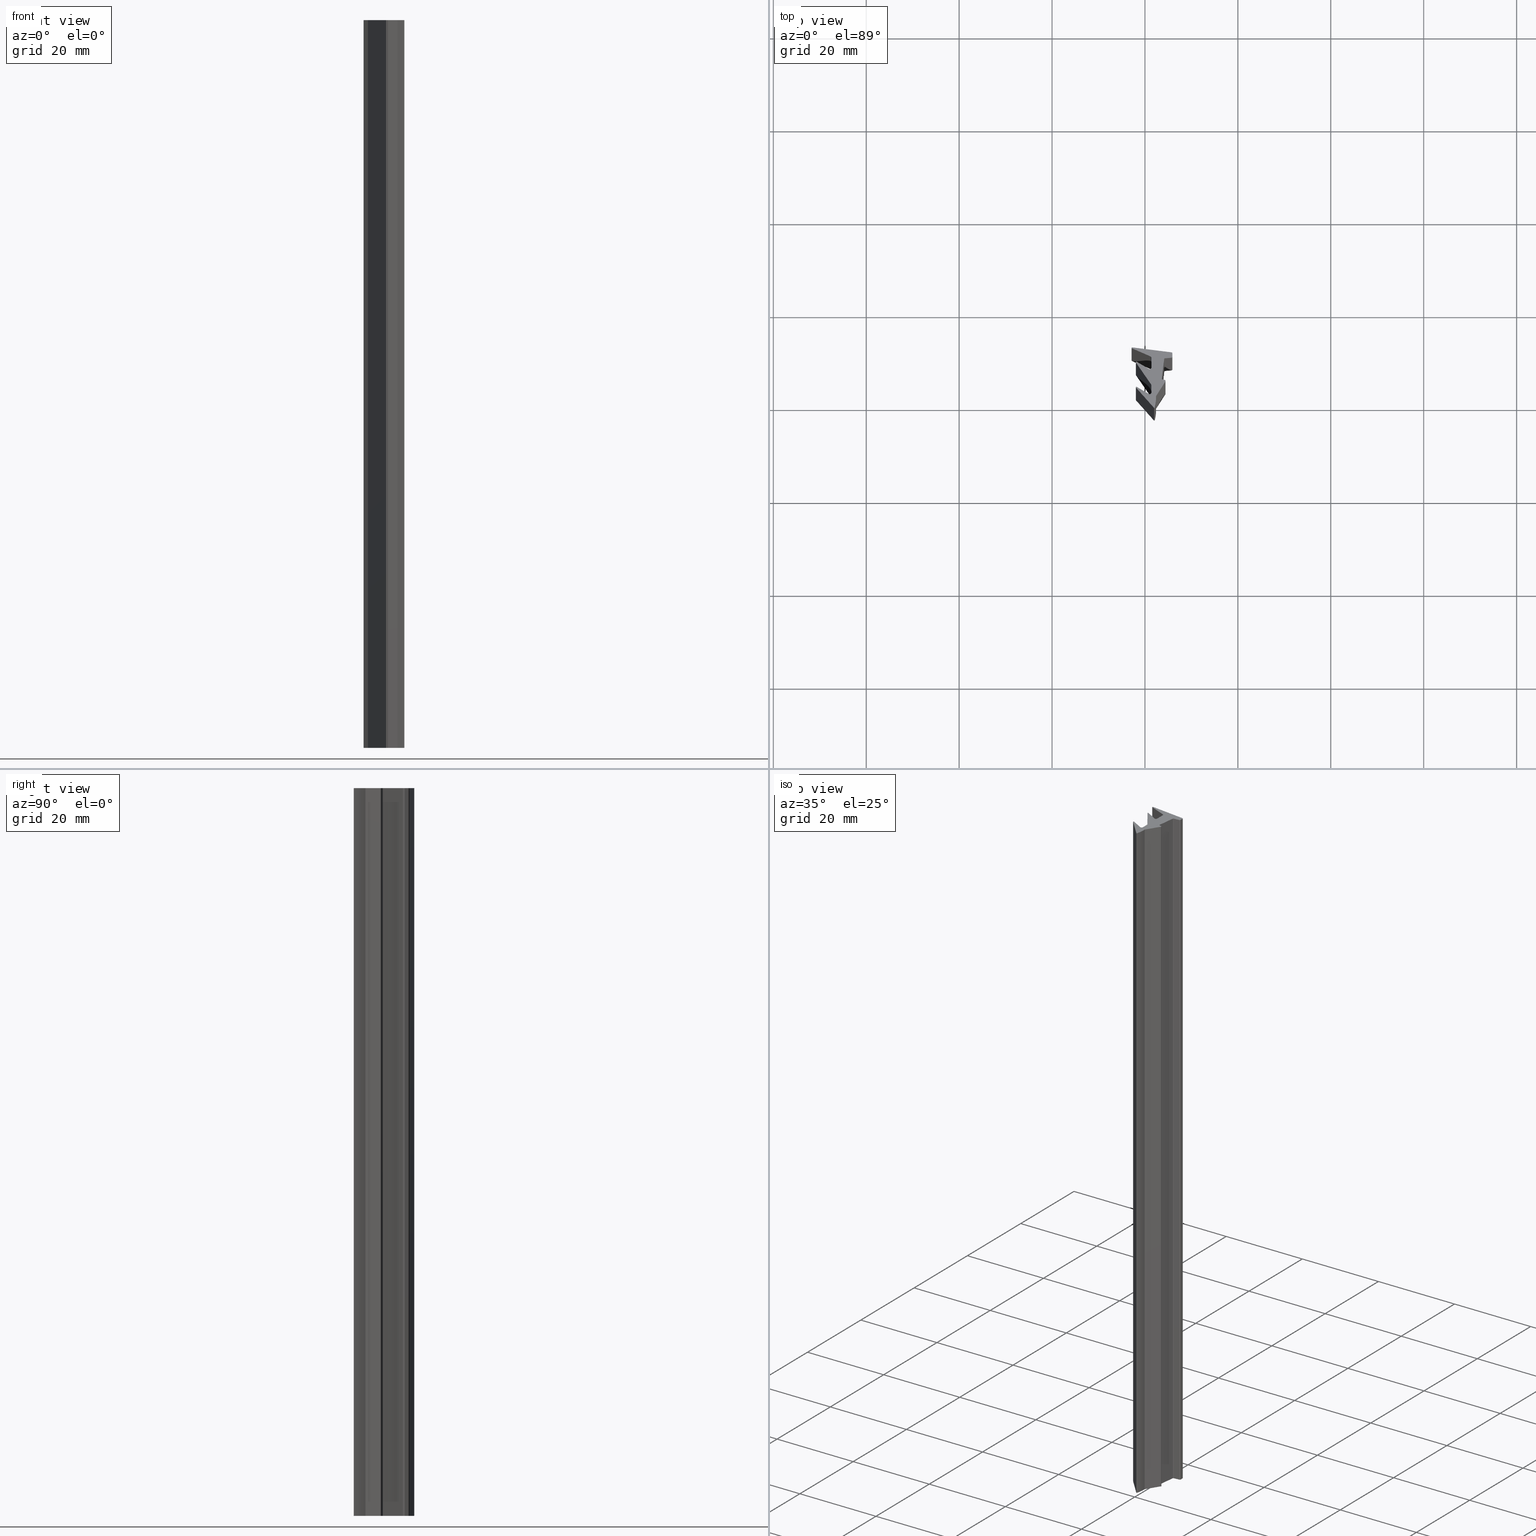
[diagram: canonical four-view strip — front | top / right | iso, engineering-drawing reading convention]
A machine part, canonical four-view strip (front | top / right | iso — engineering-drawing reading convention). The complete STEP part file that produces these views, byte-faithful:
ISO-10303-21;
HEADER;
/****************************************************************
 * Generated by software with PDE/Lib inside                    *
 * PDElib Version v4.4, created Mon 02/23/2004                  *
 * International Technegroup Inc. (www.iti-oh.com)              *
 ****************************************************************/
FILE_DESCRIPTION(('STEP AP203'),'2;1');
FILE_NAME('21.070.00G.stp','2011-09-08T18:04:04',(''),(''),'2009.3.110','THINKDESIGN','');
FILE_SCHEMA(('CONFIG_CONTROL_DESIGN'));
ENDSEC;
DATA;
#2=CARTESIAN_POINT('',(3.782572141367382,4.093453897153268,156.662099556738530));
#3=DIRECTION('',(0.0,0.0,-1.0));
#4=DIRECTION('',(0.822371216362605,0.568951300638543,0.0));
#5=AXIS2_PLACEMENT_3D('',#2,#3,#4);
#6=CYLINDRICAL_SURFACE('',#5,0.156662099546739);
#7=CARTESIAN_POINT('',(3.745838185829598,3.941159347201392,0.0));
#8=VERTEX_POINT('',#7);
#9=CARTESIAN_POINT('',(3.627106216672928,4.112776414931432,0.0));
#10=VERTEX_POINT('',#9);
#11=CARTESIAN_POINT('',(3.782572141367383,4.093453897154178,0.0));
#12=DIRECTION('',(0.0,0.0,-1.000000000000000));
#13=DIRECTION('',(-0.992364618783390,0.123338815410629,0.0));
#14=AXIS2_PLACEMENT_3D('',#11,#12,#13);
#15=CIRCLE('',#14,0.156662099546739);
#16=EDGE_CURVE('',#8,#10,#15,.T.);
#17=ORIENTED_EDGE('',*,*,#16,.T.);
#18=CARTESIAN_POINT('',(3.627106216672928,4.112776414931432,156.662099546738520));
#19=VERTEX_POINT('',#18);
#20=CARTESIAN_POINT('',(3.627106216672928,4.112776414931432,0.0));
#21=DIRECTION('',(0.0,0.0,1.0));
#22=VECTOR('',#21,156.662099546738520);
#23=LINE('',#20,#22);
#24=EDGE_CURVE('',#10,#19,#23,.T.);
#25=ORIENTED_EDGE('',*,*,#24,.T.);
#26=CARTESIAN_POINT('',(3.745838185829598,3.941159347201392,156.662099546738520));
#27=VERTEX_POINT('',#26);
#28=CARTESIAN_POINT('',(3.782572141367383,4.093453897154178,156.662099546738570));
#29=DIRECTION('',(0.0,0.0,-1.000000000000000));
#30=DIRECTION('',(-0.992364618783390,0.123338815410629,0.0));
#31=AXIS2_PLACEMENT_3D('',#28,#29,#30);
#32=CIRCLE('',#31,0.156662099546739);
#33=EDGE_CURVE('',#27,#19,#32,.T.);
#34=ORIENTED_EDGE('',*,*,#33,.F.);
#35=CARTESIAN_POINT('',(3.745838185829598,3.941159347201392,0.0));
#36=DIRECTION('',(0.0,0.0,1.0));
#37=VECTOR('',#36,156.662099546738520);
#38=LINE('',#35,#37);
#39=EDGE_CURVE('',#8,#27,#38,.T.);
#40=ORIENTED_EDGE('',*,*,#39,.F.);
#41=EDGE_LOOP('',(#17,#25,#34,#40));
#42=FACE_OUTER_BOUND('',#41,.T.);
#43=ADVANCED_FACE('',(#42),#6,.F.);
#44=CARTESIAN_POINT('',(3.600855590343144,3.901568023608888,-7.833104977336927));
#45=DIRECTION('',(0.992364618783426,-0.123338815410339,0.0));
#46=DIRECTION('',(0.123338815410339,0.992364618783426,0.0));
#47=AXIS2_PLACEMENT_3D('',#44,#45,#46);
#48=PLANE('',#47);
#49=CARTESIAN_POINT('',(4.152118743265419,8.336944241380479,0.0));
#50=VERTEX_POINT('',#49);
#51=CARTESIAN_POINT('',(3.627106216672928,4.112776414931432,0.0));
#52=DIRECTION('',(0.123338815410290,0.992364618783432,0.0));
#53=VECTOR('',#52,4.256669117876829);
#54=LINE('',#51,#53);
#55=EDGE_CURVE('',#10,#50,#54,.T.);
#56=ORIENTED_EDGE('',*,*,#55,.T.);
#57=CARTESIAN_POINT('',(4.152118743265419,8.336944241380479,156.662099546738520));
#58=VERTEX_POINT('',#57);
#59=CARTESIAN_POINT('',(4.152118743265419,8.336944241380479,0.0));
#60=DIRECTION('',(0.0,0.0,1.0));
#61=VECTOR('',#60,156.662099546738520);
#62=LINE('',#59,#61);
#63=EDGE_CURVE('',#50,#58,#62,.T.);
#64=ORIENTED_EDGE('',*,*,#63,.T.);
#65=CARTESIAN_POINT('',(3.627106216672928,4.112776414931432,156.662099546738520));
#66=DIRECTION('',(0.123338815410290,0.992364618783432,0.0));
#67=VECTOR('',#66,4.256669117876829);
#68=LINE('',#65,#67);
#69=EDGE_CURVE('',#19,#58,#68,.T.);
#70=ORIENTED_EDGE('',*,*,#69,.F.);
#71=ORIENTED_EDGE('',*,*,#24,.F.);
#72=EDGE_LOOP('',(#56,#64,#70,#71));
#73=FACE_OUTER_BOUND('',#72,.T.);
#74=ADVANCED_FACE('',(#73),#48,.T.);
#75=CARTESIAN_POINT('',(4.307584667960327,8.317621723603224,156.662099556738530));
#76=DIRECTION('',(0.0,0.0,-1.0));
#77=DIRECTION('',(0.693305467504988,-0.720643829313546,0.0));
#78=AXIS2_PLACEMENT_3D('',#75,#76,#77);
#79=CYLINDRICAL_SURFACE('',#78,0.156662099546739);
#80=CARTESIAN_POINT('',(4.294286135813309,8.473718368272785,0.0));
#81=VERTEX_POINT('',#80);
#82=CARTESIAN_POINT('',(4.307584667960328,8.317621723604136,0.0));
#83=DIRECTION('',(0.0,0.0,-1.000000000000000));
#84=DIRECTION('',(-0.992364618783390,0.123338815410629,0.0));
#85=AXIS2_PLACEMENT_3D('',#82,#83,#84);
#86=CIRCLE('',#85,0.156662099546739);
#87=EDGE_CURVE('',#50,#81,#86,.T.);
#88=ORIENTED_EDGE('',*,*,#87,.T.);
#89=CARTESIAN_POINT('',(4.294286135813309,8.473718368272785,156.662099546738520));
#90=VERTEX_POINT('',#89);
#91=CARTESIAN_POINT('',(4.294286135813309,8.473718368272785,0.0));
#92=DIRECTION('',(0.0,0.0,1.0));
#93=VECTOR('',#92,156.662099546738520);
#94=LINE('',#91,#93);
#95=EDGE_CURVE('',#81,#90,#94,.T.);
#96=ORIENTED_EDGE('',*,*,#95,.T.);
#97=CARTESIAN_POINT('',(4.307584667960328,8.317621723604136,156.662099546738570));
#98=DIRECTION('',(0.0,0.0,-1.000000000000000));
#99=DIRECTION('',(-0.992364618783390,0.123338815410629,0.0));
#100=AXIS2_PLACEMENT_3D('',#97,#98,#99);
#101=CIRCLE('',#100,0.156662099546739);
#102=EDGE_CURVE('',#58,#90,#101,.T.);
#103=ORIENTED_EDGE('',*,*,#102,.F.);
#104=ORIENTED_EDGE('',*,*,#63,.F.);
#105=EDGE_LOOP('',(#88,#96,#103,#104));
#106=FACE_OUTER_BOUND('',#105,.T.);
#107=ADVANCED_FACE('',(#106),#79,.F.);
#108=CARTESIAN_POINT('',(4.223379425339317,8.467677526263287,-7.833104977336927));
#109=DIRECTION('',(0.084886722349647,-0.996390608330254,0.0));
#110=DIRECTION('',(0.996390608330254,0.084886722349647,0.0));
#111=AXIS2_PLACEMENT_3D('',#108,#109,#110);
#112=PLANE('',#111);
#113=CARTESIAN_POINT('',(5.712420345300416,8.594535208463640,0.0));
#114=VERTEX_POINT('',#113);
#115=CARTESIAN_POINT('',(4.294286135813309,8.473718368272785,0.0));
#116=DIRECTION('',(0.996390608330204,0.084886722350242,0.0));
#117=VECTOR('',#116,1.423271353253400);
#118=LINE('',#115,#117);
#119=EDGE_CURVE('',#81,#114,#118,.T.);
#120=ORIENTED_EDGE('',*,*,#119,.T.);
#121=CARTESIAN_POINT('',(5.712420345300416,8.594535208463640,156.662099546738520));
#122=VERTEX_POINT('',#121);
#123=CARTESIAN_POINT('',(5.712420345300416,8.594535208463640,0.0));
#124=DIRECTION('',(0.0,0.0,1.0));
#125=VECTOR('',#124,156.662099546738520);
#126=LINE('',#123,#125);
#127=EDGE_CURVE('',#114,#122,#126,.T.);
#128=ORIENTED_EDGE('',*,*,#127,.T.);
#129=CARTESIAN_POINT('',(4.294286135813309,8.473718368272785,156.662099546738520));
#130=DIRECTION('',(0.996390608330204,0.084886722350242,0.0));
#131=VECTOR('',#130,1.423271353253400);
#132=LINE('',#129,#131);
#133=EDGE_CURVE('',#90,#122,#132,.T.);
#134=ORIENTED_EDGE('',*,*,#133,.F.);
#135=ORIENTED_EDGE('',*,*,#95,.F.);
#136=EDGE_LOOP('',(#120,#128,#134,#135));
#137=FACE_OUTER_BOUND('',#136,.T.);
#138=ADVANCED_FACE('',(#137),#112,.T.);
#139=CARTESIAN_POINT('',(5.677345157437230,8.814530131073298,-1.000000E-008));
#140=DIRECTION('',(0.0,0.0,1.0));
#141=DIRECTION('',(-0.760739033090775,0.649057873792556,0.0));
#142=AXIS2_PLACEMENT_3D('',#139,#140,#141);
#143=CYLINDRICAL_SURFACE('',#142,0.222773505554569);
#144=CARTESIAN_POINT('',(5.900118662993009,8.814530131073298,0.0));
#145=VERTEX_POINT('',#144);
#146=CARTESIAN_POINT('',(5.677345157437230,8.814530131073298,0.0));
#147=DIRECTION('',(0.0,0.0,1.0));
#148=DIRECTION('',(1.0,0.0,0.0));
#149=AXIS2_PLACEMENT_3D('',#146,#147,#148);
#150=CIRCLE('',#149,0.222773505554569);
#151=EDGE_CURVE('',#114,#145,#150,.T.);
#152=ORIENTED_EDGE('',*,*,#151,.T.);
#153=CARTESIAN_POINT('',(5.900118662993009,8.814530131073298,156.662099546738520));
#154=VERTEX_POINT('',#153);
#155=CARTESIAN_POINT('',(5.900118662993009,8.814530131073298,0.0));
#156=DIRECTION('',(0.0,0.0,1.0));
#157=VECTOR('',#156,156.662099546738520);
#158=LINE('',#155,#157);
#159=EDGE_CURVE('',#145,#154,#158,.T.);
#160=ORIENTED_EDGE('',*,*,#159,.T.);
#161=CARTESIAN_POINT('',(5.677345157437230,8.814530131073298,156.662099546738520));
#162=DIRECTION('',(0.0,0.0,1.0));
#163=DIRECTION('',(1.0,0.0,0.0));
#164=AXIS2_PLACEMENT_3D('',#161,#162,#163);
#165=CIRCLE('',#164,0.222773505554569);
#166=EDGE_CURVE('',#122,#154,#165,.T.);
#167=ORIENTED_EDGE('',*,*,#166,.F.);
#168=ORIENTED_EDGE('',*,*,#127,.F.);
#169=EDGE_LOOP('',(#152,#160,#167,#168));
#170=FACE_OUTER_BOUND('',#169,.T.);
#171=ADVANCED_FACE('',(#170),#143,.T.);
#172=CARTESIAN_POINT('',(5.900118662993009,8.778246364674487,-7.833104977336927));
#173=DIRECTION('',(1.0,0.0,0.0));
#174=DIRECTION('',(0.0,1.0,0.0));
#175=AXIS2_PLACEMENT_3D('',#172,#173,#174);
#176=PLANE('',#175);
#177=CARTESIAN_POINT('',(5.900118662992099,9.540205459052231,0.0));
#178=VERTEX_POINT('',#177);
#179=CARTESIAN_POINT('',(5.900118662993009,8.814530131073298,0.0));
#180=DIRECTION('',(0.0,1.0,0.0));
#181=VECTOR('',#180,0.725675327978934);
#182=LINE('',#179,#181);
#183=EDGE_CURVE('',#145,#178,#182,.T.);
#184=ORIENTED_EDGE('',*,*,#183,.T.);
#185=CARTESIAN_POINT('',(5.900118662992099,9.540205459052231,156.662099546738520));
#186=VERTEX_POINT('',#185);
#187=CARTESIAN_POINT('',(5.900118662992099,9.540205459052231,0.0));
#188=DIRECTION('',(0.0,0.0,1.0));
#189=VECTOR('',#188,156.662099546738520);
#190=LINE('',#187,#189);
#191=EDGE_CURVE('',#178,#186,#190,.T.);
#192=ORIENTED_EDGE('',*,*,#191,.T.);
#193=CARTESIAN_POINT('',(5.900118662993009,8.814530131073298,156.662099546738520));
#194=DIRECTION('',(0.0,1.0,0.0));
#195=VECTOR('',#194,0.725675327978934);
#196=LINE('',#193,#195);
#197=EDGE_CURVE('',#154,#186,#196,.T.);
#198=ORIENTED_EDGE('',*,*,#197,.F.);
#199=ORIENTED_EDGE('',*,*,#159,.F.);
#200=EDGE_LOOP('',(#184,#192,#198,#199));
#201=FACE_OUTER_BOUND('',#200,.T.);
#202=ADVANCED_FACE('',(#201),#176,.T.);
#203=CARTESIAN_POINT('',(5.677345157437230,9.540205459052231,-9.999998E-009));
#204=DIRECTION('',(0.0,0.0,1.0));
#205=DIRECTION('',(-0.747238876675503,-0.664555536569166,0.0));
#206=AXIS2_PLACEMENT_3D('',#203,#204,#205);
#207=CYLINDRICAL_SURFACE('',#206,0.222773505554574);
#208=CARTESIAN_POINT('',(5.703349927026920,9.761455965798632,0.0));
#209=VERTEX_POINT('',#208);
#210=CARTESIAN_POINT('',(5.677345157437230,9.540205459052231,0.0));
#211=DIRECTION('',(0.0,0.0,1.0));
#212=DIRECTION('',(1.0,0.0,0.0));
#213=AXIS2_PLACEMENT_3D('',#210,#211,#212);
#214=CIRCLE('',#213,0.222773505554574);
#215=EDGE_CURVE('',#178,#209,#214,.T.);
#216=ORIENTED_EDGE('',*,*,#215,.T.);
#217=CARTESIAN_POINT('',(5.703349927026920,9.761455965798632,156.662099546738520));
#218=VERTEX_POINT('',#217);
#219=CARTESIAN_POINT('',(5.703349927026920,9.761455965798632,0.0));
#220=DIRECTION('',(0.0,0.0,1.0));
#221=VECTOR('',#220,156.662099546738520);
#222=LINE('',#219,#221);
#223=EDGE_CURVE('',#209,#218,#222,.T.);
#224=ORIENTED_EDGE('',*,*,#223,.T.);
#225=CARTESIAN_POINT('',(5.677345157437230,9.540205459052231,156.662099546738520));
#226=DIRECTION('',(0.0,0.0,1.0));
#227=DIRECTION('',(1.0,0.0,0.0));
#228=AXIS2_PLACEMENT_3D('',#225,#226,#227);
#229=CIRCLE('',#228,0.222773505554574);
#230=EDGE_CURVE('',#186,#218,#229,.T.);
#231=ORIENTED_EDGE('',*,*,#230,.F.);
#232=ORIENTED_EDGE('',*,*,#191,.F.);
#233=EDGE_LOOP('',(#216,#224,#231,#232));
#234=FACE_OUTER_BOUND('',#233,.T.);
#235=ADVANCED_FACE('',(#234),#207,.T.);
#236=CARTESIAN_POINT('',(6.125630443962109,9.708140382124839,-7.833104977336927));
#237=DIRECTION('',(0.125261887887571,0.992123711763226,0.0));
#238=DIRECTION('',(-0.992123711763226,0.125261887887571,0.0));
#239=AXIS2_PLACEMENT_3D('',#236,#237,#238);
#240=PLANE('',#239);
#241=CARTESIAN_POINT('',(-2.742260411687312,10.827767639279045,0.0));
#242=VERTEX_POINT('',#241);
#243=CARTESIAN_POINT('',(5.703349927026920,9.761455965798632,0.0));
#244=DIRECTION('',(-0.992123711763217,0.125261887887643,0.0));
#245=VECTOR('',#244,8.512658490647869);
#246=LINE('',#243,#245);
#247=EDGE_CURVE('',#209,#242,#246,.T.);
#248=ORIENTED_EDGE('',*,*,#247,.T.);
#249=CARTESIAN_POINT('',(-2.742260411687312,10.827767639279045,156.662099546738520));
#250=VERTEX_POINT('',#249);
#251=CARTESIAN_POINT('',(-2.742260411687312,10.827767639279045,0.0));
#252=DIRECTION('',(0.0,0.0,1.0));
#253=VECTOR('',#252,156.662099546738520);
#254=LINE('',#251,#253);
#255=EDGE_CURVE('',#242,#250,#254,.T.);
#256=ORIENTED_EDGE('',*,*,#255,.T.);
#257=CARTESIAN_POINT('',(5.703349927026920,9.761455965798632,156.662099546738520));
#258=DIRECTION('',(-0.992123711763217,0.125261887887643,0.0));
#259=VECTOR('',#258,8.512658490647869);
#260=LINE('',#257,#259);
#261=EDGE_CURVE('',#218,#250,#260,.T.);
#262=ORIENTED_EDGE('',*,*,#261,.F.);
#263=ORIENTED_EDGE('',*,*,#223,.F.);
#264=EDGE_LOOP('',(#248,#256,#262,#263));
#265=FACE_OUTER_BOUND('',#264,.T.);
#266=ADVANCED_FACE('',(#265),#240,.T.);
#267=CARTESIAN_POINT('',(-2.755262796483294,10.717142385907209,-1.000000E-008));
#268=DIRECTION('',(0.0,0.0,1.0));
#269=DIRECTION('',(1.0,0.0,0.0));
#270=AXIS2_PLACEMENT_3D('',#267,#268,#269);
#271=CYLINDRICAL_SURFACE('',#270,0.111386752777284);
#272=CARTESIAN_POINT('',(-2.799425364350554,10.614884494800208,0.0));
#273=VERTEX_POINT('',#272);
#274=CARTESIAN_POINT('',(-2.755262796483294,10.717142385907209,0.0));
#275=DIRECTION('',(0.0,0.0,1.0));
#276=DIRECTION('',(1.0,0.0,0.0));
#277=AXIS2_PLACEMENT_3D('',#274,#275,#276);
#278=CIRCLE('',#277,0.111386752777284);
#279=EDGE_CURVE('',#242,#273,#278,.T.);
#280=ORIENTED_EDGE('',*,*,#279,.T.);
#281=CARTESIAN_POINT('',(-2.799425364350554,10.614884494800208,156.662099546738520));
#282=VERTEX_POINT('',#281);
#283=CARTESIAN_POINT('',(-2.799425364350554,10.614884494800208,0.0));
#284=DIRECTION('',(0.0,0.0,1.0));
#285=VECTOR('',#284,156.662099546738520);
#286=LINE('',#283,#285);
#287=EDGE_CURVE('',#273,#282,#286,.T.);
#288=ORIENTED_EDGE('',*,*,#287,.T.);
#289=CARTESIAN_POINT('',(-2.755262796483294,10.717142385907209,156.662099546738520));
#290=DIRECTION('',(0.0,0.0,1.0));
#291=DIRECTION('',(1.0,0.0,0.0));
#292=AXIS2_PLACEMENT_3D('',#289,#290,#291);
#293=CIRCLE('',#292,0.111386752777284);
#294=EDGE_CURVE('',#250,#282,#293,.T.);
#295=ORIENTED_EDGE('',*,*,#294,.F.);
#296=ORIENTED_EDGE('',*,*,#255,.F.);
#297=EDGE_LOOP('',(#280,#288,#295,#296));
#298=FACE_OUTER_BOUND('',#297,.T.);
#299=ADVANCED_FACE('',(#298),#271,.T.);
#300=CARTESIAN_POINT('',(-2.998245893233616,10.700749996281047,-7.833104977336927));
#301=DIRECTION('',(-0.396479534292955,-0.918043560451704,0.0));
#302=DIRECTION('',(0.918043560451704,-0.396479534292955,0.0));
#303=AXIS2_PLACEMENT_3D('',#300,#301,#302);
#304=PLANE('',#303);
#305=CARTESIAN_POINT('',(1.176985213307489,8.897574465183425,0.0));
#306=VERTEX_POINT('',#305);
#307=CARTESIAN_POINT('',(-2.799425364350554,10.614884494800208,0.0));
#308=DIRECTION('',(0.918043560451671,-0.396479534293031,0.0));
#309=VECTOR('',#308,4.331396405310147);
#310=LINE('',#307,#309);
#311=EDGE_CURVE('',#273,#306,#310,.T.);
#312=ORIENTED_EDGE('',*,*,#311,.T.);
#313=CARTESIAN_POINT('',(1.176985213307489,8.897574465183425,156.662099546738520));
#314=VERTEX_POINT('',#313);
#315=CARTESIAN_POINT('',(1.176985213307489,8.897574465183425,0.0));
#316=DIRECTION('',(0.0,0.0,1.0));
#317=VECTOR('',#316,156.662099546738520);
#318=LINE('',#315,#317);
#319=EDGE_CURVE('',#306,#314,#318,.T.);
#320=ORIENTED_EDGE('',*,*,#319,.T.);
#321=CARTESIAN_POINT('',(-2.799425364350554,10.614884494800208,156.662099546738520));
#322=DIRECTION('',(0.918043560451671,-0.396479534293031,0.0));
#323=VECTOR('',#322,4.331396405310147);
#324=LINE('',#321,#323);
#325=EDGE_CURVE('',#282,#314,#324,.T.);
#326=ORIENTED_EDGE('',*,*,#325,.F.);
#327=ORIENTED_EDGE('',*,*,#287,.F.);
#328=EDGE_LOOP('',(#312,#320,#326,#327));
#329=FACE_OUTER_BOUND('',#328,.T.);
#330=ADVANCED_FACE('',(#329),#304,.T.);
#331=CARTESIAN_POINT('',(1.044497509704343,8.590800791863330,156.662099556738530));
#332=DIRECTION('',(0.0,0.0,-1.0));
#333=DIRECTION('',(-0.835607424061664,-0.549327072747221,0.0));
#334=AXIS2_PLACEMENT_3D('',#331,#332,#333);
#335=CYLINDRICAL_SURFACE('',#334,0.334160258331857);
#336=CARTESIAN_POINT('',(1.378657768036192,8.590800791863330,0.0));
#337=VERTEX_POINT('',#336);
#338=CARTESIAN_POINT('',(1.044497509704343,8.590800791863330,0.0));
#339=DIRECTION('',(0.0,0.0,-1.0));
#340=DIRECTION('',(1.0,0.0,0.0));
#341=AXIS2_PLACEMENT_3D('',#338,#339,#340);
#342=CIRCLE('',#341,0.334160258331857);
#343=EDGE_CURVE('',#306,#337,#342,.T.);
#344=ORIENTED_EDGE('',*,*,#343,.T.);
#345=CARTESIAN_POINT('',(1.378657768036192,8.590800791863330,156.662099546738520));
#346=VERTEX_POINT('',#345);
#347=CARTESIAN_POINT('',(1.378657768036192,8.590800791863330,0.0));
#348=DIRECTION('',(0.0,0.0,1.0));
#349=VECTOR('',#348,156.662099546738520);
#350=LINE('',#347,#349);
#351=EDGE_CURVE('',#337,#346,#350,.T.);
#352=ORIENTED_EDGE('',*,*,#351,.T.);
#353=CARTESIAN_POINT('',(1.044497509704343,8.590800791863330,156.662099546738520));
#354=DIRECTION('',(0.0,0.0,-1.0));
#355=DIRECTION('',(1.0,0.0,0.0));
#356=AXIS2_PLACEMENT_3D('',#353,#354,#355);
#357=CIRCLE('',#356,0.334160258331857);
#358=EDGE_CURVE('',#314,#346,#357,.T.);
#359=ORIENTED_EDGE('',*,*,#358,.F.);
#360=ORIENTED_EDGE('',*,*,#319,.F.);
#361=EDGE_LOOP('',(#344,#352,#359,#360));
#362=FACE_OUTER_BOUND('',#361,.T.);
#363=ADVANCED_FACE('',(#362),#335,.F.);
#364=CARTESIAN_POINT('',(1.378657768036192,8.696981201759627,-7.833104977336927));
#365=DIRECTION('',(-1.0,0.0,0.0));
#366=DIRECTION('',(0.0,-1.0,0.0));
#367=AXIS2_PLACEMENT_3D('',#364,#365,#366);
#368=PLANE('',#367);
#369=CARTESIAN_POINT('',(1.378657768036192,6.467192593946493,0.0));
#370=VERTEX_POINT('',#369);
#371=CARTESIAN_POINT('',(1.378657768036192,8.590800791863330,0.0));
#372=DIRECTION('',(0.0,-1.0,0.0));
#373=VECTOR('',#372,2.123608197916838);
#374=LINE('',#371,#373);
#375=EDGE_CURVE('',#337,#370,#374,.T.);
#376=ORIENTED_EDGE('',*,*,#375,.T.);
#377=CARTESIAN_POINT('',(1.378657768036192,6.467192593946493,156.662099546738520));
#378=VERTEX_POINT('',#377);
#379=CARTESIAN_POINT('',(1.378657768036192,6.467192593946493,0.0));
#380=DIRECTION('',(0.0,0.0,1.0));
#381=VECTOR('',#380,156.662099546738520);
#382=LINE('',#379,#381);
#383=EDGE_CURVE('',#370,#378,#382,.T.);
#384=ORIENTED_EDGE('',*,*,#383,.T.);
#385=CARTESIAN_POINT('',(1.378657768036192,8.590800791863330,156.662099546738520));
#386=DIRECTION('',(0.0,-1.0,0.0));
#387=VECTOR('',#386,2.123608197916838);
#388=LINE('',#385,#387);
#389=EDGE_CURVE('',#346,#378,#388,.T.);
#390=ORIENTED_EDGE('',*,*,#389,.F.);
#391=ORIENTED_EDGE('',*,*,#351,.F.);
#392=EDGE_LOOP('',(#376,#384,#390,#391));
#393=FACE_OUTER_BOUND('',#392,.T.);
#394=ADVANCED_FACE('',(#393),#368,.T.);
#395=CARTESIAN_POINT('',(1.044497509704343,6.467192593946493,156.662099556738530));
#396=DIRECTION('',(0.0,0.0,-1.0));
#397=DIRECTION('',(-0.500000000000151,0.866025403784351,0.0));
#398=AXIS2_PLACEMENT_3D('',#395,#396,#397);
#399=CYLINDRICAL_SURFACE('',#398,0.334160258331855);
#400=CARTESIAN_POINT('',(0.877417380537736,6.177801321294282,0.0));
#401=VERTEX_POINT('',#400);
#402=CARTESIAN_POINT('',(1.044497509704343,6.467192593946493,0.0));
#403=DIRECTION('',(0.0,0.0,-1.0));
#404=DIRECTION('',(1.0,0.0,0.0));
#405=AXIS2_PLACEMENT_3D('',#402,#403,#404);
#406=CIRCLE('',#405,0.334160258331855);
#407=EDGE_CURVE('',#370,#401,#406,.T.);
#408=ORIENTED_EDGE('',*,*,#407,.T.);
#409=CARTESIAN_POINT('',(0.877417380537736,6.177801321294282,156.662099546738520));
#410=VERTEX_POINT('',#409);
#411=CARTESIAN_POINT('',(0.877417380537736,6.177801321294282,0.0));
#412=DIRECTION('',(0.0,0.0,1.0));
#413=VECTOR('',#412,156.662099546738520);
#414=LINE('',#411,#413);
#415=EDGE_CURVE('',#401,#410,#414,.T.);
#416=ORIENTED_EDGE('',*,*,#415,.T.);
#417=CARTESIAN_POINT('',(1.044497509704343,6.467192593946493,156.662099546738520));
#418=DIRECTION('',(0.0,0.0,-1.0));
#419=DIRECTION('',(1.0,0.0,0.0));
#420=AXIS2_PLACEMENT_3D('',#417,#418,#419);
#421=CIRCLE('',#420,0.334160258331855);
#422=EDGE_CURVE('',#378,#410,#421,.T.);
#423=ORIENTED_EDGE('',*,*,#422,.F.);
#424=ORIENTED_EDGE('',*,*,#383,.F.);
#425=EDGE_LOOP('',(#408,#416,#423,#424));
#426=FACE_OUTER_BOUND('',#425,.T.);
#427=ADVANCED_FACE('',(#426),#399,.F.);
#428=CARTESIAN_POINT('',(1.010784766142479,6.100801625314489,-7.833104977336927));
#429=DIRECTION('',(0.500000000000061,0.866025403784403,0.0));
#430=DIRECTION('',(-0.866025403784403,0.500000000000061,0.0));
#431=AXIS2_PLACEMENT_3D('',#428,#429,#430);
#432=PLANE('',#431);
#433=CARTESIAN_POINT('',(-1.789930331567575,7.717795240902888,0.0));
#434=VERTEX_POINT('',#433);
#435=CARTESIAN_POINT('',(0.877417380537736,6.177801321294282,0.0));
#436=DIRECTION('',(-0.866025403784449,0.499999999999982,0.0));
#437=VECTOR('',#436,3.079987839213682);
#438=LINE('',#435,#437);
#439=EDGE_CURVE('',#401,#434,#438,.T.);
#440=ORIENTED_EDGE('',*,*,#439,.T.);
#441=CARTESIAN_POINT('',(-1.789930331567575,7.717795240902888,156.662099546738520));
#442=VERTEX_POINT('',#441);
#443=CARTESIAN_POINT('',(-1.789930331567575,7.717795240902888,0.0));
#444=DIRECTION('',(0.0,0.0,1.0));
#445=VECTOR('',#444,156.662099546738520);
#446=LINE('',#443,#445);
#447=EDGE_CURVE('',#434,#442,#446,.T.);
#448=ORIENTED_EDGE('',*,*,#447,.T.);
#449=CARTESIAN_POINT('',(0.877417380537736,6.177801321294282,156.662099546738520));
#450=DIRECTION('',(-0.866025403784449,0.499999999999982,0.0));
#451=VECTOR('',#450,3.079987839213682);
#452=LINE('',#449,#451);
#453=EDGE_CURVE('',#410,#442,#452,.T.);
#454=ORIENTED_EDGE('',*,*,#453,.F.);
#455=ORIENTED_EDGE('',*,*,#415,.F.);
#456=EDGE_LOOP('',(#440,#448,#454,#455));
#457=FACE_OUTER_BOUND('',#456,.T.);
#458=ADVANCED_FACE('',(#457),#432,.T.);
#459=CARTESIAN_POINT('',(-1.845623707956747,7.621331483352151,-1.000000E-008));
#460=DIRECTION('',(0.0,0.0,1.0));
#461=DIRECTION('',(1.0,0.0,0.0));
#462=AXIS2_PLACEMENT_3D('',#459,#460,#461);
#463=CYLINDRICAL_SURFACE('',#462,0.111386752777285);
#464=CARTESIAN_POINT('',(-1.932615860579972,7.551765873482509,0.0));
#465=VERTEX_POINT('',#464);
#466=CARTESIAN_POINT('',(-1.845623707956747,7.621331483352151,0.0));
#467=DIRECTION('',(0.0,0.0,1.0));
#468=DIRECTION('',(1.0,0.0,0.0));
#469=AXIS2_PLACEMENT_3D('',#466,#467,#468);
#470=CIRCLE('',#469,0.111386752777285);
#471=EDGE_CURVE('',#434,#465,#470,.T.);
#472=ORIENTED_EDGE('',*,*,#471,.T.);
#473=CARTESIAN_POINT('',(-1.932615860579972,7.551765873482509,156.662099546738520));
#474=VERTEX_POINT('',#473);
#475=CARTESIAN_POINT('',(-1.932615860579972,7.551765873482509,0.0));
#476=DIRECTION('',(0.0,0.0,1.0));
#477=VECTOR('',#476,156.662099546738520);
#478=LINE('',#475,#477);
#479=EDGE_CURVE('',#465,#474,#478,.T.);
#480=ORIENTED_EDGE('',*,*,#479,.T.);
#481=CARTESIAN_POINT('',(-1.845623707956747,7.621331483352151,156.662099546738520));
#482=DIRECTION('',(0.0,0.0,1.0));
#483=DIRECTION('',(1.0,0.0,0.0));
#484=AXIS2_PLACEMENT_3D('',#481,#482,#483);
#485=CIRCLE('',#484,0.111386752777285);
#486=EDGE_CURVE('',#442,#474,#485,.T.);
#487=ORIENTED_EDGE('',*,*,#486,.F.);
#488=ORIENTED_EDGE('',*,*,#447,.F.);
#489=EDGE_LOOP('',(#472,#480,#487,#488));
#490=FACE_OUTER_BOUND('',#489,.T.);
#491=ADVANCED_FACE('',(#490),#463,.T.);
#492=CARTESIAN_POINT('',(-2.094520351987740,7.785560691892897,-7.833104977336927));
#493=DIRECTION('',(-0.822115594193941,-0.569320603687538,0.0));
#494=DIRECTION('',(0.569320603687538,-0.822115594193941,0.0));
#495=AXIS2_PLACEMENT_3D('',#492,#493,#494);
#496=PLANE('',#495);
#497=CARTESIAN_POINT('',(1.305473967573562,2.875869505279297,0.0));
#498=VERTEX_POINT('',#497);
#499=CARTESIAN_POINT('',(-1.932615860579972,7.551765873482509,0.0));
#500=DIRECTION('',(0.569320603687481,-0.822115594193981,0.0));
#501=VECTOR('',#500,5.687638576893263);
#502=LINE('',#499,#501);
#503=EDGE_CURVE('',#465,#498,#502,.T.);
#504=ORIENTED_EDGE('',*,*,#503,.T.);
#505=CARTESIAN_POINT('',(1.305473967573562,2.875869505279297,156.662099546738520));
#506=VERTEX_POINT('',#505);
#507=CARTESIAN_POINT('',(1.305473967573562,2.875869505279297,0.0));
#508=DIRECTION('',(0.0,0.0,1.0));
#509=VECTOR('',#508,156.662099546738520);
#510=LINE('',#507,#509);
#511=EDGE_CURVE('',#498,#506,#510,.T.);
#512=ORIENTED_EDGE('',*,*,#511,.T.);
#513=CARTESIAN_POINT('',(-1.932615860579972,7.551765873482509,156.662099546738520));
#514=DIRECTION('',(0.569320603687481,-0.822115594193981,0.0));
#515=VECTOR('',#514,5.687638576893263);
#516=LINE('',#513,#515);
#517=EDGE_CURVE('',#474,#506,#516,.T.);
#518=ORIENTED_EDGE('',*,*,#517,.F.);
#519=ORIENTED_EDGE('',*,*,#479,.F.);
#520=EDGE_LOOP('',(#504,#512,#518,#519));
#521=FACE_OUTER_BOUND('',#520,.T.);
#522=ADVANCED_FACE('',(#521),#496,.T.);
#523=CARTESIAN_POINT('',(1.044497509704797,2.667172675677648,156.662099556738530));
#524=DIRECTION('',(0.0,0.0,-1.0));
#525=DIRECTION('',(-0.943660931800175,-0.330913955272403,0.0));
#526=AXIS2_PLACEMENT_3D('',#523,#524,#525);
#527=CYLINDRICAL_SURFACE('',#526,0.334160258331858);
#528=CARTESIAN_POINT('',(1.378657768036192,2.667172675677648,0.0));
#529=VERTEX_POINT('',#528);
#530=CARTESIAN_POINT('',(1.044497509704343,2.667172675677648,0.0));
#531=DIRECTION('',(0.0,0.0,-1.0));
#532=DIRECTION('',(1.0,0.0,0.0));
#533=AXIS2_PLACEMENT_3D('',#530,#531,#532);
#534=CIRCLE('',#533,0.334160258331858);
#535=EDGE_CURVE('',#498,#529,#534,.T.);
#536=ORIENTED_EDGE('',*,*,#535,.T.);
#537=CARTESIAN_POINT('',(1.378657768036192,2.667172675677648,156.662099546738520));
#538=VERTEX_POINT('',#537);
#539=CARTESIAN_POINT('',(1.378657768036192,2.667172675677648,0.0));
#540=DIRECTION('',(0.0,0.0,1.0));
#541=VECTOR('',#540,156.662099546738520);
#542=LINE('',#539,#541);
#543=EDGE_CURVE('',#529,#538,#542,.T.);
#544=ORIENTED_EDGE('',*,*,#543,.T.);
#545=CARTESIAN_POINT('',(1.044497509704343,2.667172675677648,156.662099546738520));
#546=DIRECTION('',(0.0,0.0,-1.0));
#547=DIRECTION('',(1.0,0.0,0.0));
#548=AXIS2_PLACEMENT_3D('',#545,#546,#547);
#549=CIRCLE('',#548,0.334160258331858);
#550=EDGE_CURVE('',#506,#538,#549,.T.);
#551=ORIENTED_EDGE('',*,*,#550,.F.);
#552=ORIENTED_EDGE('',*,*,#511,.F.);
#553=EDGE_LOOP('',(#536,#544,#551,#552));
#554=FACE_OUTER_BOUND('',#553,.T.);
#555=ADVANCED_FACE('',(#554),#527,.F.);
#556=CARTESIAN_POINT('',(1.378657768036192,2.746290046582544,-7.833104977336927));
#557=DIRECTION('',(-1.0,0.0,0.0));
#558=DIRECTION('',(0.0,-1.0,0.0));
#559=AXIS2_PLACEMENT_3D('',#556,#557,#558);
#560=PLANE('',#559);
#561=CARTESIAN_POINT('',(1.378657768036192,1.084825257572447,0.0));
#562=VERTEX_POINT('',#561);
#563=CARTESIAN_POINT('',(1.378657768036192,2.667172675677648,0.0));
#564=DIRECTION('',(0.0,-1.0,0.0));
#565=VECTOR('',#564,1.582347418105201);
#566=LINE('',#563,#565);
#567=EDGE_CURVE('',#529,#562,#566,.T.);
#568=ORIENTED_EDGE('',*,*,#567,.T.);
#569=CARTESIAN_POINT('',(1.378657768036192,1.084825257572447,156.662099546738520));
#570=VERTEX_POINT('',#569);
#571=CARTESIAN_POINT('',(1.378657768036192,1.084825257572447,0.0));
#572=DIRECTION('',(0.0,0.0,1.0));
#573=VECTOR('',#572,156.662099546738520);
#574=LINE('',#571,#573);
#575=EDGE_CURVE('',#562,#570,#574,.T.);
#576=ORIENTED_EDGE('',*,*,#575,.T.);
#577=CARTESIAN_POINT('',(1.378657768036192,2.667172675677648,156.662099546738520));
#578=DIRECTION('',(0.0,-1.0,0.0));
#579=VECTOR('',#578,1.582347418105201);
#580=LINE('',#577,#579);
#581=EDGE_CURVE('',#538,#570,#580,.T.);
#582=ORIENTED_EDGE('',*,*,#581,.F.);
#583=ORIENTED_EDGE('',*,*,#543,.F.);
#584=EDGE_LOOP('',(#568,#576,#582,#583));
#585=FACE_OUTER_BOUND('',#584,.T.);
#586=ADVANCED_FACE('',(#585),#560,.T.);
#587=CARTESIAN_POINT('',(1.044497509704343,1.084825257572447,156.662099556738530));
#588=DIRECTION('',(0.0,0.0,-1.0));
#589=DIRECTION('',(-0.499999999999130,0.866025403784941,0.0));
#590=AXIS2_PLACEMENT_3D('',#587,#588,#589);
#591=CYLINDRICAL_SURFACE('',#590,0.334160258331859);
#592=CARTESIAN_POINT('',(0.877417380537736,0.795433984922056,0.0));
#593=VERTEX_POINT('',#592);
#594=CARTESIAN_POINT('',(1.044497509704343,1.084825257572447,0.0));
#595=DIRECTION('',(0.0,0.0,-1.0));
#596=DIRECTION('',(1.0,0.0,0.0));
#597=AXIS2_PLACEMENT_3D('',#594,#595,#596);
#598=CIRCLE('',#597,0.334160258331859);
#599=EDGE_CURVE('',#562,#593,#598,.T.);
#600=ORIENTED_EDGE('',*,*,#599,.T.);
#601=CARTESIAN_POINT('',(0.877417380537736,0.795433984922056,156.662099546738520));
#602=VERTEX_POINT('',#601);
#603=CARTESIAN_POINT('',(0.877417380537736,0.795433984922056,0.0));
#604=DIRECTION('',(0.0,0.0,1.0));
#605=VECTOR('',#604,156.662099546738520);
#606=LINE('',#603,#605);
#607=EDGE_CURVE('',#593,#602,#606,.T.);
#608=ORIENTED_EDGE('',*,*,#607,.T.);
#609=CARTESIAN_POINT('',(1.044497509704343,1.084825257572447,156.662099546738520));
#610=DIRECTION('',(0.0,0.0,-1.0));
#611=DIRECTION('',(1.0,0.0,0.0));
#612=AXIS2_PLACEMENT_3D('',#609,#610,#611);
#613=CIRCLE('',#612,0.334160258331859);
#614=EDGE_CURVE('',#570,#602,#613,.T.);
#615=ORIENTED_EDGE('',*,*,#614,.F.);
#616=ORIENTED_EDGE('',*,*,#575,.F.);
#617=EDGE_LOOP('',(#600,#608,#615,#616));
#618=FACE_OUTER_BOUND('',#617,.T.);
#619=ADVANCED_FACE('',(#618),#591,.F.);
#620=CARTESIAN_POINT('',(1.010784766142933,0.718434288941353,-7.833104977336927));
#621=DIRECTION('',(0.500000000000061,0.866025403784403,0.0));
#622=DIRECTION('',(-0.866025403784403,0.500000000000061,0.0));
#623=AXIS2_PLACEMENT_3D('',#620,#621,#622);
#624=PLANE('',#623);
#625=CARTESIAN_POINT('',(-1.789930331567575,2.335427904527933,0.0));
#626=VERTEX_POINT('',#625);
#627=CARTESIAN_POINT('',(0.877417380537736,0.795433984922056,0.0));
#628=DIRECTION('',(-0.866025403784503,0.499999999999889,0.0));
#629=VECTOR('',#628,3.079987839212439);
#630=LINE('',#627,#629);
#631=EDGE_CURVE('',#593,#626,#630,.T.);
#632=ORIENTED_EDGE('',*,*,#631,.T.);
#633=CARTESIAN_POINT('',(-1.789930331567575,2.335427904527933,156.662099546738520));
#634=VERTEX_POINT('',#633);
#635=CARTESIAN_POINT('',(-1.789930331567575,2.335427904527933,0.0));
#636=DIRECTION('',(0.0,0.0,1.0));
#637=VECTOR('',#636,156.662099546738520);
#638=LINE('',#635,#637);
#639=EDGE_CURVE('',#626,#634,#638,.T.);
#640=ORIENTED_EDGE('',*,*,#639,.T.);
#641=CARTESIAN_POINT('',(0.877417380537736,0.795433984922056,156.662099546738520));
#642=DIRECTION('',(-0.866025403784503,0.499999999999889,0.0));
#643=VECTOR('',#642,3.079987839212439);
#644=LINE('',#641,#643);
#645=EDGE_CURVE('',#602,#634,#644,.T.);
#646=ORIENTED_EDGE('',*,*,#645,.F.);
#647=ORIENTED_EDGE('',*,*,#607,.F.);
#648=EDGE_LOOP('',(#632,#640,#646,#647));
#649=FACE_OUTER_BOUND('',#648,.T.);
#650=ADVANCED_FACE('',(#649),#624,.T.);
#651=CARTESIAN_POINT('',(-1.845623707956747,2.238964146979015,-1.000000E-008));
#652=DIRECTION('',(0.0,0.0,1.0));
#653=DIRECTION('',(1.0,0.0,0.0));
#654=AXIS2_PLACEMENT_3D('',#651,#652,#653);
#655=CYLINDRICAL_SURFACE('',#654,0.111386752777285);
#656=CARTESIAN_POINT('',(-1.932615860579972,2.169398537110283,0.0));
#657=VERTEX_POINT('',#656);
#658=CARTESIAN_POINT('',(-1.845623707956747,2.238964146979015,0.0));
#659=DIRECTION('',(0.0,0.0,1.0));
#660=DIRECTION('',(1.0,0.0,0.0));
#661=AXIS2_PLACEMENT_3D('',#658,#659,#660);
#662=CIRCLE('',#661,0.111386752777285);
#663=EDGE_CURVE('',#626,#657,#662,.T.);
#664=ORIENTED_EDGE('',*,*,#663,.T.);
#665=CARTESIAN_POINT('',(-1.932615860579972,2.169398537110283,156.662099546738520));
#666=VERTEX_POINT('',#665);
#667=CARTESIAN_POINT('',(-1.932615860579972,2.169398537110283,0.0));
#668=DIRECTION('',(0.0,0.0,1.0));
#669=VECTOR('',#668,156.662099546738520);
#670=LINE('',#667,#669);
#671=EDGE_CURVE('',#657,#666,#670,.T.);
#672=ORIENTED_EDGE('',*,*,#671,.T.);
#673=CARTESIAN_POINT('',(-1.845623707956747,2.238964146979015,156.662099546738520));
#674=DIRECTION('',(0.0,0.0,1.0));
#675=DIRECTION('',(1.0,0.0,0.0));
#676=AXIS2_PLACEMENT_3D('',#673,#674,#675);
#677=CIRCLE('',#676,0.111386752777285);
#678=EDGE_CURVE('',#634,#666,#677,.T.);
#679=ORIENTED_EDGE('',*,*,#678,.F.);
#680=ORIENTED_EDGE('',*,*,#639,.F.);
#681=EDGE_LOOP('',(#664,#672,#679,#680));
#682=FACE_OUTER_BOUND('',#681,.T.);
#683=ADVANCED_FACE('',(#682),#655,.T.);
#684=CARTESIAN_POINT('',(-2.125877446637787,2.386338390821038,-7.833104977336927));
#685=DIRECTION('',(-0.746680531138299,-0.665182820297568,0.0));
#686=DIRECTION('',(0.665182820297568,-0.746680531138299,0.0));
#687=AXIS2_PLACEMENT_3D('',#684,#685,#686);
#688=PLANE('',#687);
#689=CARTESIAN_POINT('',(1.932615860580427,-2.169398537109373,0.0));
#690=VERTEX_POINT('',#689);
#691=CARTESIAN_POINT('',(-1.932615860579972,2.169398537110283,0.0));
#692=DIRECTION('',(0.665182820297574,-0.746680531138295,0.0));
#693=VECTOR('',#692,5.810781041264428);
#694=LINE('',#691,#693);
#695=EDGE_CURVE('',#657,#690,#694,.T.);
#696=ORIENTED_EDGE('',*,*,#695,.T.);
#697=CARTESIAN_POINT('',(1.932615860580427,-2.169398537109373,156.662099546738520));
#698=VERTEX_POINT('',#697);
#699=CARTESIAN_POINT('',(1.932615860580427,-2.169398537109373,0.0));
#700=DIRECTION('',(0.0,0.0,1.0));
#701=VECTOR('',#700,156.662099546738520);
#702=LINE('',#699,#701);
#703=EDGE_CURVE('',#690,#698,#702,.T.);
#704=ORIENTED_EDGE('',*,*,#703,.T.);
#705=CARTESIAN_POINT('',(-1.932615860579972,2.169398537110283,156.662099546738520));
#706=DIRECTION('',(0.665182820297574,-0.746680531138295,0.0));
#707=VECTOR('',#706,5.810781041264428);
#708=LINE('',#705,#707);
#709=EDGE_CURVE('',#666,#698,#708,.T.);
#710=ORIENTED_EDGE('',*,*,#709,.F.);
#711=ORIENTED_EDGE('',*,*,#671,.F.);
#712=EDGE_LOOP('',(#696,#704,#710,#711));
#713=FACE_OUTER_BOUND('',#712,.T.);
#714=ADVANCED_FACE('',(#713),#688,.T.);
#715=CARTESIAN_POINT('',(2.015786180305440,-2.095305982751597,-1.000000E-008));
#716=DIRECTION('',(0.0,0.0,1.0));
#717=DIRECTION('',(1.0,0.0,0.0));
#718=AXIS2_PLACEMENT_3D('',#715,#716,#717);
#719=CYLINDRICAL_SURFACE('',#718,0.111386752777285);
#720=CARTESIAN_POINT('',(2.091966180026702,-2.176568620766375,0.0));
#721=VERTEX_POINT('',#720);
#722=CARTESIAN_POINT('',(2.015786180305440,-2.095305982751597,0.0));
#723=DIRECTION('',(0.0,0.0,1.0));
#724=DIRECTION('',(1.0,0.0,0.0));
#725=AXIS2_PLACEMENT_3D('',#722,#723,#724);
#726=CIRCLE('',#725,0.111386752777285);
#727=EDGE_CURVE('',#690,#721,#726,.T.);
#728=ORIENTED_EDGE('',*,*,#727,.T.);
#729=CARTESIAN_POINT('',(2.091966180026702,-2.176568620766375,156.662099546738520));
#730=VERTEX_POINT('',#729);
#731=CARTESIAN_POINT('',(2.091966180026702,-2.176568620766375,0.0));
#732=DIRECTION('',(0.0,0.0,1.0));
#733=VECTOR('',#732,156.662099546738520);
#734=LINE('',#731,#733);
#735=EDGE_CURVE('',#721,#730,#734,.T.);
#736=ORIENTED_EDGE('',*,*,#735,.T.);
#737=CARTESIAN_POINT('',(2.015786180305440,-2.095305982751597,156.662099546738520));
#738=DIRECTION('',(0.0,0.0,1.0));
#739=DIRECTION('',(1.0,0.0,0.0));
#740=AXIS2_PLACEMENT_3D('',#737,#738,#739);
#741=CIRCLE('',#740,0.111386752777285);
#742=EDGE_CURVE('',#698,#730,#741,.T.);
#743=ORIENTED_EDGE('',*,*,#742,.F.);
#744=ORIENTED_EDGE('',*,*,#703,.F.);
#745=EDGE_LOOP('',(#728,#736,#743,#744));
#746=FACE_OUTER_BOUND('',#745,.T.);
#747=ADVANCED_FACE('',(#746),#719,.T.);
#748=CARTESIAN_POINT('',(-5.199480920887254,-0.070203893272264,-1.000000E-008));
#749=DIRECTION('',(0.0,0.0,1.0));
#750=DIRECTION('',(-0.992880849649745,0.119111789503813,0.0));
#751=AXIS2_PLACEMENT_3D('',#748,#749,#750);
#752=CYLINDRICAL_SURFACE('',#751,7.589596378639001);
#753=CARTESIAN_POINT('',(2.383283097864933,0.251763537660736,0.0));
#754=VERTEX_POINT('',#753);
#755=CARTESIAN_POINT('',(-5.199480920887709,-0.070203893272264,0.0));
#756=DIRECTION('',(0.0,0.0,1.0));
#757=DIRECTION('',(1.0,0.0,0.0));
#758=AXIS2_PLACEMENT_3D('',#755,#756,#757);
#759=CIRCLE('',#758,7.589596378639001);
#760=EDGE_CURVE('',#721,#754,#759,.T.);
#761=ORIENTED_EDGE('',*,*,#760,.T.);
#762=CARTESIAN_POINT('',(2.383283097864933,0.251763537660736,156.662099546738520));
#763=VERTEX_POINT('',#762);
#764=CARTESIAN_POINT('',(2.383283097864933,0.251763537660736,0.0));
#765=DIRECTION('',(0.0,0.0,1.0));
#766=VECTOR('',#765,156.662099546738520);
#767=LINE('',#764,#766);
#768=EDGE_CURVE('',#754,#763,#767,.T.);
#769=ORIENTED_EDGE('',*,*,#768,.T.);
#770=CARTESIAN_POINT('',(-5.199480920887709,-0.070203893272264,156.662099546738520));
#771=DIRECTION('',(0.0,0.0,1.0));
#772=DIRECTION('',(1.0,0.0,0.0));
#773=AXIS2_PLACEMENT_3D('',#770,#771,#772);
#774=CIRCLE('',#773,7.589596378639001);
#775=EDGE_CURVE('',#730,#763,#774,.T.);
#776=ORIENTED_EDGE('',*,*,#775,.F.);
#777=ORIENTED_EDGE('',*,*,#735,.F.);
#778=EDGE_LOOP('',(#761,#769,#776,#777));
#779=FACE_OUTER_BOUND('',#778,.T.);
#780=ADVANCED_FACE('',(#779),#752,.T.);
#781=CARTESIAN_POINT('',(2.602412593188092,0.261067870549596,156.662099556738530));
#782=DIRECTION('',(0.0,0.0,-1.0));
#783=DIRECTION('',(0.965711307105718,-0.259618318552766,0.0));
#784=AXIS2_PLACEMENT_3D('',#781,#782,#783);
#785=CYLINDRICAL_SURFACE('',#784,0.219326939364557);
#786=CARTESIAN_POINT('',(2.417487982992043,0.378996640894911,0.0));
#787=VERTEX_POINT('',#786);
#788=CARTESIAN_POINT('',(2.602412593187637,0.261067870549596,0.0));
#789=DIRECTION('',(0.0,0.0,-1.0));
#790=DIRECTION('',(1.0,0.0,0.0));
#791=AXIS2_PLACEMENT_3D('',#788,#789,#790);
#792=CIRCLE('',#791,0.219326939364557);
#793=EDGE_CURVE('',#754,#787,#792,.T.);
#794=ORIENTED_EDGE('',*,*,#793,.T.);
#795=CARTESIAN_POINT('',(2.417487982992043,0.378996640894911,156.662099546738520));
#796=VERTEX_POINT('',#795);
#797=CARTESIAN_POINT('',(2.417487982992043,0.378996640894911,0.0));
#798=DIRECTION('',(0.0,0.0,1.0));
#799=VECTOR('',#798,156.662099546738520);
#800=LINE('',#797,#799);
#801=EDGE_CURVE('',#787,#796,#800,.T.);
#802=ORIENTED_EDGE('',*,*,#801,.T.);
#803=CARTESIAN_POINT('',(2.602412593187637,0.261067870549596,156.662099546738520));
#804=DIRECTION('',(0.0,0.0,-1.0));
#805=DIRECTION('',(1.0,0.0,0.0));
#806=AXIS2_PLACEMENT_3D('',#803,#804,#805);
#807=CIRCLE('',#806,0.219326939364557);
#808=EDGE_CURVE('',#763,#796,#807,.T.);
#809=ORIENTED_EDGE('',*,*,#808,.F.);
#810=ORIENTED_EDGE('',*,*,#768,.F.);
#811=EDGE_LOOP('',(#794,#802,#809,#810));
#812=FACE_OUTER_BOUND('',#811,.T.);
#813=ADVANCED_FACE('',(#812),#785,.F.);
#814=CARTESIAN_POINT('',(2.318454961865882,0.223702536033670,-7.833104977336927));
#815=DIRECTION('',(0.843145902326728,-0.537684840208134,0.0));
#816=DIRECTION('',(0.537684840208134,0.843145902326728,0.0));
#817=AXIS2_PLACEMENT_3D('',#814,#815,#816);
#818=PLANE('',#817);
#819=CARTESIAN_POINT('',(4.398148405514803,3.484878738118823,0.0));
#820=VERTEX_POINT('',#819);
#821=CARTESIAN_POINT('',(2.417487982992043,0.378996640894911,0.0));
#822=DIRECTION('',(0.537684840208141,0.843145902326724,0.0));
#823=VECTOR('',#822,3.683682846175258);
#824=LINE('',#821,#823);
#825=EDGE_CURVE('',#787,#820,#824,.T.);
#826=ORIENTED_EDGE('',*,*,#825,.T.);
#827=CARTESIAN_POINT('',(4.398148405514803,3.484878738118823,156.662099546738520));
#828=VERTEX_POINT('',#827);
#829=CARTESIAN_POINT('',(4.398148405514803,3.484878738118823,0.0));
#830=DIRECTION('',(0.0,0.0,1.0));
#831=VECTOR('',#830,156.662099546738520);
#832=LINE('',#829,#831);
#833=EDGE_CURVE('',#820,#828,#832,.T.);
#834=ORIENTED_EDGE('',*,*,#833,.T.);
#835=CARTESIAN_POINT('',(2.417487982992043,0.378996640894911,156.662099546738520));
#836=DIRECTION('',(0.537684840208141,0.843145902326724,0.0));
#837=VECTOR('',#836,3.683682846175258);
#838=LINE('',#835,#837);
#839=EDGE_CURVE('',#796,#828,#838,.T.);
#840=ORIENTED_EDGE('',*,*,#839,.F.);
#841=ORIENTED_EDGE('',*,*,#801,.F.);
#842=EDGE_LOOP('',(#826,#834,#840,#841));
#843=FACE_OUTER_BOUND('',#842,.T.);
#844=ADVANCED_FACE('',(#843),#818,.T.);
#845=CARTESIAN_POINT('',(4.213223795319664,3.602807508465048,-1.000000E-008));
#846=DIRECTION('',(0.0,0.0,1.0));
#847=DIRECTION('',(-0.927468262298865,-0.373901888773411,0.0));
#848=AXIS2_PLACEMENT_3D('',#845,#846,#847);
#849=CYLINDRICAL_SURFACE('',#848,0.219326939364557);
#850=CARTESIAN_POINT('',(4.264651333071925,3.816019878394400,0.0));
#851=VERTEX_POINT('',#850);
#852=CARTESIAN_POINT('',(4.213223795319664,3.602807508465048,0.0));
#853=DIRECTION('',(0.0,0.0,1.0));
#854=DIRECTION('',(1.0,0.0,0.0));
#855=AXIS2_PLACEMENT_3D('',#852,#853,#854);
#856=CIRCLE('',#855,0.219326939364557);
#857=EDGE_CURVE('',#820,#851,#856,.T.);
#858=ORIENTED_EDGE('',*,*,#857,.T.);
#859=CARTESIAN_POINT('',(4.264651333071925,3.816019878394400,156.662099546738520));
#860=VERTEX_POINT('',#859);
#861=CARTESIAN_POINT('',(4.264651333071925,3.816019878394400,0.0));
#862=DIRECTION('',(0.0,0.0,1.0));
#863=VECTOR('',#862,156.662099546738520);
#864=LINE('',#861,#863);
#865=EDGE_CURVE('',#851,#860,#864,.T.);
#866=ORIENTED_EDGE('',*,*,#865,.T.);
#867=CARTESIAN_POINT('',(4.213223795319664,3.602807508465048,156.662099546738520));
#868=DIRECTION('',(0.0,0.0,1.0));
#869=DIRECTION('',(1.0,0.0,0.0));
#870=AXIS2_PLACEMENT_3D('',#867,#868,#869);
#871=CIRCLE('',#870,0.219326939364557);
#872=EDGE_CURVE('',#828,#860,#871,.T.);
#873=ORIENTED_EDGE('',*,*,#872,.F.);
#874=ORIENTED_EDGE('',*,*,#833,.F.);
#875=EDGE_LOOP('',(#858,#866,#873,#874));
#876=FACE_OUTER_BOUND('',#875,.T.);
#877=ADVANCED_FACE('',(#876),#849,.T.);
#878=CARTESIAN_POINT('',(4.290591990434223,3.809762904954368,-7.833104977336927));
#879=DIRECTION('',(0.234478892111543,0.972121211143005,0.0));
#880=DIRECTION('',(-0.972121211143005,0.234478892111543,0.0));
#881=AXIS2_PLACEMENT_3D('',#878,#879,#880);
#882=PLANE('',#881);
#883=CARTESIAN_POINT('',(4.264651333071925,3.816019878395309,0.0));
#884=DIRECTION('',(-0.972121211143323,0.234478892110228,0.0));
#885=VECTOR('',#884,0.533691829059202);
#886=LINE('',#883,#885);
#887=EDGE_CURVE('',#851,#8,#886,.T.);
#888=ORIENTED_EDGE('',*,*,#887,.T.);
#889=ORIENTED_EDGE('',*,*,#39,.T.);
#890=CARTESIAN_POINT('',(4.264651333071925,3.816019878395309,156.662099546738520));
#891=DIRECTION('',(-0.972121211143323,0.234478892110228,0.0));
#892=VECTOR('',#891,0.533691829059202);
#893=LINE('',#890,#892);
#894=EDGE_CURVE('',#860,#27,#893,.T.);
#895=ORIENTED_EDGE('',*,*,#894,.F.);
#896=ORIENTED_EDGE('',*,*,#865,.F.);
#897=EDGE_LOOP('',(#888,#889,#895,#896));
#898=FACE_OUTER_BOUND('',#897,.T.);
#899=ADVANCED_FACE('',(#898),#882,.T.);
#900=CARTESIAN_POINT('',(-3.743333789793724,-3.510222342230009,0.0));
#901=DIRECTION('',(0.0,0.0,1.0));
#902=DIRECTION('',(1.0,0.0,0.0));
#903=AXIS2_PLACEMENT_3D('',#900,#901,#902);
#904=PLANE('',#903);
#905=ORIENTED_EDGE('',*,*,#887,.F.);
#906=ORIENTED_EDGE('',*,*,#857,.F.);
#907=ORIENTED_EDGE('',*,*,#825,.F.);
#908=ORIENTED_EDGE('',*,*,#793,.F.);
#909=ORIENTED_EDGE('',*,*,#760,.F.);
#910=ORIENTED_EDGE('',*,*,#727,.F.);
#911=ORIENTED_EDGE('',*,*,#695,.F.);
#912=ORIENTED_EDGE('',*,*,#663,.F.);
#913=ORIENTED_EDGE('',*,*,#631,.F.);
#914=ORIENTED_EDGE('',*,*,#599,.F.);
#915=ORIENTED_EDGE('',*,*,#567,.F.);
#916=ORIENTED_EDGE('',*,*,#535,.F.);
#917=ORIENTED_EDGE('',*,*,#503,.F.);
#918=ORIENTED_EDGE('',*,*,#471,.F.);
#919=ORIENTED_EDGE('',*,*,#439,.F.);
#920=ORIENTED_EDGE('',*,*,#407,.F.);
#921=ORIENTED_EDGE('',*,*,#375,.F.);
#922=ORIENTED_EDGE('',*,*,#343,.F.);
#923=ORIENTED_EDGE('',*,*,#311,.F.);
#924=ORIENTED_EDGE('',*,*,#279,.F.);
#925=ORIENTED_EDGE('',*,*,#247,.F.);
#926=ORIENTED_EDGE('',*,*,#215,.F.);
#927=ORIENTED_EDGE('',*,*,#183,.F.);
#928=ORIENTED_EDGE('',*,*,#151,.F.);
#929=ORIENTED_EDGE('',*,*,#119,.F.);
#930=ORIENTED_EDGE('',*,*,#87,.F.);
#931=ORIENTED_EDGE('',*,*,#55,.F.);
#932=ORIENTED_EDGE('',*,*,#16,.F.);
#933=EDGE_LOOP('',(#905,#906,#907,#908,#909,#910,#911,#912,#913,#914,#915,#916,#917,#918,#919,#920,#921,#922,#923,#924,#925,#926,#927,#928,#929,#930,#931,#932));
#934=FACE_OUTER_BOUND('',#933,.T.);
#935=ADVANCED_FACE('',(#934),#904,.F.);
#936=CARTESIAN_POINT('',(-3.743333789793724,-3.510222342230009,156.662099546738520));
#937=DIRECTION('',(0.0,0.0,1.0));
#938=DIRECTION('',(1.0,0.0,0.0));
#939=AXIS2_PLACEMENT_3D('',#936,#937,#938);
#940=PLANE('',#939);
#941=ORIENTED_EDGE('',*,*,#33,.T.);
#942=ORIENTED_EDGE('',*,*,#69,.T.);
#943=ORIENTED_EDGE('',*,*,#102,.T.);
#944=ORIENTED_EDGE('',*,*,#133,.T.);
#945=ORIENTED_EDGE('',*,*,#166,.T.);
#946=ORIENTED_EDGE('',*,*,#197,.T.);
#947=ORIENTED_EDGE('',*,*,#230,.T.);
#948=ORIENTED_EDGE('',*,*,#261,.T.);
#949=ORIENTED_EDGE('',*,*,#294,.T.);
#950=ORIENTED_EDGE('',*,*,#325,.T.);
#951=ORIENTED_EDGE('',*,*,#358,.T.);
#952=ORIENTED_EDGE('',*,*,#389,.T.);
#953=ORIENTED_EDGE('',*,*,#422,.T.);
#954=ORIENTED_EDGE('',*,*,#453,.T.);
#955=ORIENTED_EDGE('',*,*,#486,.T.);
#956=ORIENTED_EDGE('',*,*,#517,.T.);
#957=ORIENTED_EDGE('',*,*,#550,.T.);
#958=ORIENTED_EDGE('',*,*,#581,.T.);
#959=ORIENTED_EDGE('',*,*,#614,.T.);
#960=ORIENTED_EDGE('',*,*,#645,.T.);
#961=ORIENTED_EDGE('',*,*,#678,.T.);
#962=ORIENTED_EDGE('',*,*,#709,.T.);
#963=ORIENTED_EDGE('',*,*,#742,.T.);
#964=ORIENTED_EDGE('',*,*,#775,.T.);
#965=ORIENTED_EDGE('',*,*,#808,.T.);
#966=ORIENTED_EDGE('',*,*,#839,.T.);
#967=ORIENTED_EDGE('',*,*,#872,.T.);
#968=ORIENTED_EDGE('',*,*,#894,.T.);
#969=EDGE_LOOP('',(#941,#942,#943,#944,#945,#946,#947,#948,#949,#950,#951,#952,#953,#954,#955,#956,#957,#958,#959,#960,#961,#962,#963,#964,#965,#966,#967,#968));
#970=FACE_OUTER_BOUND('',#969,.T.);
#971=ADVANCED_FACE('',(#970),#940,.T.);
#972=CLOSED_SHELL('',(#43,#74,#107,#138,#171,#202,#235,#266,#299,#330,#363,#394,#427,#458,#491,#522,#555,#586,#619,#650,#683,#714,#747,#780,#813,#844,#877,#899,#935,#971));
#973=MANIFOLD_SOLID_BREP('',#972);
#979=(NAMED_UNIT(*)PLANE_ANGLE_UNIT()SI_UNIT($,.RADIAN.));
#980=DIMENSIONAL_EXPONENTS(0.0,0.0,0.0,0.0,0.0,0.0,0.0);
#981=PLANE_ANGLE_MEASURE_WITH_UNIT(PLANE_ANGLE_MEASURE(0.017453292500000),#979);
#985=(CONVERSION_BASED_UNIT('DEGREE',#981)NAMED_UNIT(#980)PLANE_ANGLE_UNIT());
#989=(NAMED_UNIT(*)SI_UNIT($,.STERADIAN.)SOLID_ANGLE_UNIT());
#993=(LENGTH_UNIT()NAMED_UNIT(*)SI_UNIT(.MILLI.,.METRE.));
#995=UNCERTAINTY_MEASURE_WITH_UNIT(LENGTH_MEASURE(0.001000000000000),#993,'DISTANCE_ACCURACY_VALUE','');
#997=(GEOMETRIC_REPRESENTATION_CONTEXT(3)GLOBAL_UNCERTAINTY_ASSIGNED_CONTEXT((#995))GLOBAL_UNIT_ASSIGNED_CONTEXT((#985,#989,#993))REPRESENTATION_CONTEXT('thinkdesign','2009.3.110'));
#998=ADVANCED_BREP_SHAPE_REPRESENTATION('',(#973),#997);
#999=APPLICATION_CONTEXT('configuration controlled 3D designs of mechanical parts and assemblies');
#1000=APPLICATION_PROTOCOL_DEFINITION('International Standard','config_control_design',1995,#999);
#1001=MECHANICAL_CONTEXT('None',#999,'mechanical');
#1002=PRODUCT('None','None','None',(#1001));
#1003=PRODUCT_RELATED_PRODUCT_CATEGORY('detail',$,(#1002));
#1004=PRODUCT_CATEGORY('part',$);
#1005=PRODUCT_CATEGORY_RELATIONSHIP('None','None',#1004,#1003);
#1006=PERSON('PERSON1','None','None',$,$,$);
#1007=ORGANIZATION('','None','None');
#1008=PERSON_AND_ORGANIZATION(#1006,#1007);
#1009=PERSON_AND_ORGANIZATION_ROLE('design_owner');
#1010=CC_DESIGN_PERSON_AND_ORGANIZATION_ASSIGNMENT(#1008,#1009,(#1002));
#1011=PRODUCT_DEFINITION_FORMATION_WITH_SPECIFIED_SOURCE('None','None',#1002,.NOT_KNOWN.);
#1012=PERSON('PERSON2','None','None',$,$,$);
#1013=ORGANIZATION('','None','None');
#1014=PERSON_AND_ORGANIZATION(#1012,#1013);
#1015=PERSON_AND_ORGANIZATION_ROLE('creator');
#1016=CC_DESIGN_PERSON_AND_ORGANIZATION_ASSIGNMENT(#1014,#1015,(#1011));
#1017=PERSON('PERSON3','None','None',$,$,$);
#1018=ORGANIZATION('','None','None');
#1019=PERSON_AND_ORGANIZATION(#1017,#1018);
#1020=PERSON_AND_ORGANIZATION_ROLE('part_supplier');
#1021=CC_DESIGN_PERSON_AND_ORGANIZATION_ASSIGNMENT(#1019,#1020,(#1011));
#1022=APPROVAL_STATUS('approved');
#1023=APPROVAL(#1022,'None');
#1024=PERSON('PERSON4','None','None',$,$,$);
#1025=ORGANIZATION('','None','None');
#1026=PERSON_AND_ORGANIZATION(#1024,#1025);
#1027=APPROVAL_ROLE('None');
#1028=APPROVAL_PERSON_ORGANIZATION(#1026,#1023,#1027);
#1029=CALENDAR_DATE(2011,8,9);
#1030=COORDINATED_UNIVERSAL_TIME_OFFSET(0,0,.AHEAD.);
#1031=LOCAL_TIME(18,4,4.0,#1030);
#1032=DATE_AND_TIME(#1029,#1031);
#1033=APPROVAL_DATE_TIME(#1032,#1023);
#1034=CC_DESIGN_APPROVAL(#1023,(#1011));
#1035=SECURITY_CLASSIFICATION_LEVEL('unclassified');
#1036=SECURITY_CLASSIFICATION('None','None',#1035);
#1037=CC_DESIGN_SECURITY_CLASSIFICATION(#1036,(#1011));
#1038=APPROVAL_STATUS('approved');
#1039=APPROVAL(#1038,'None');
#1040=PERSON('PERSON5','None','None',$,$,$);
#1041=ORGANIZATION('','None','None');
#1042=PERSON_AND_ORGANIZATION(#1040,#1041);
#1043=APPROVAL_ROLE('None');
#1044=APPROVAL_PERSON_ORGANIZATION(#1042,#1039,#1043);
#1045=CALENDAR_DATE(2011,8,9);
#1046=COORDINATED_UNIVERSAL_TIME_OFFSET(0,0,.AHEAD.);
#1047=LOCAL_TIME(18,4,4.0,#1046);
#1048=DATE_AND_TIME(#1045,#1047);
#1049=APPROVAL_DATE_TIME(#1048,#1039);
#1050=CC_DESIGN_APPROVAL(#1039,(#1036));
#1051=PERSON('PERSON6','None','None',$,$,$);
#1052=ORGANIZATION('','None','None');
#1053=PERSON_AND_ORGANIZATION(#1051,#1052);
#1054=PERSON_AND_ORGANIZATION_ROLE('classification_officer');
#1055=CC_DESIGN_PERSON_AND_ORGANIZATION_ASSIGNMENT(#1053,#1054,(#1036));
#1056=DATE_TIME_ROLE('classification_date');
#1057=CALENDAR_DATE(2011,8,9);
#1058=COORDINATED_UNIVERSAL_TIME_OFFSET(0,0,.AHEAD.);
#1059=LOCAL_TIME(18,4,4.0,#1058);
#1060=DATE_AND_TIME(#1057,#1059);
#1061=CC_DESIGN_DATE_AND_TIME_ASSIGNMENT(#1060,#1056,(#1036));
#1062=DESIGN_CONTEXT('part definition',#999,'design');
#1063=DOCUMENT_TYPE('cad_filename');
#1064=DOCUMENT('None','None','None',#1063);
#1065=PRODUCT_DEFINITION_WITH_ASSOCIATED_DOCUMENTS('None','None',#1011,#1062,(#1064));
#1066=PERSON('PERSON7','None','None',$,$,$);
#1067=ORGANIZATION('','None','None');
#1068=PERSON_AND_ORGANIZATION(#1066,#1067);
#1069=PERSON_AND_ORGANIZATION_ROLE('creator');
#1070=CC_DESIGN_PERSON_AND_ORGANIZATION_ASSIGNMENT(#1068,#1069,(#1065));
#1071=DATE_TIME_ROLE('creation_date');
#1072=CALENDAR_DATE(2011,8,9);
#1073=COORDINATED_UNIVERSAL_TIME_OFFSET(0,0,.AHEAD.);
#1074=LOCAL_TIME(18,4,4.0,#1073);
#1075=DATE_AND_TIME(#1072,#1074);
#1076=CC_DESIGN_DATE_AND_TIME_ASSIGNMENT(#1075,#1071,(#1065));
#1077=APPROVAL_STATUS('approved');
#1078=APPROVAL(#1077,'None');
#1079=PERSON('PERSON8','None','None',$,$,$);
#1080=ORGANIZATION('','None','None');
#1081=PERSON_AND_ORGANIZATION(#1079,#1080);
#1082=APPROVAL_ROLE('None');
#1083=APPROVAL_PERSON_ORGANIZATION(#1081,#1078,#1082);
#1084=CALENDAR_DATE(2011,8,9);
#1085=COORDINATED_UNIVERSAL_TIME_OFFSET(0,0,.AHEAD.);
#1086=LOCAL_TIME(18,4,4.0,#1085);
#1087=DATE_AND_TIME(#1084,#1086);
#1088=APPROVAL_DATE_TIME(#1087,#1078);
#1089=CC_DESIGN_APPROVAL(#1078,(#1065));
#1090=PRODUCT_DEFINITION_SHAPE('None','None',#1065);
#1091=SHAPE_DEFINITION_REPRESENTATION(#1090,#998);
#1092=DIMENSIONAL_EXPONENTS(0.0,0.0,0.0,0.0,0.0,0.0,0.0);
#1093=DIMENSIONAL_EXPONENTS(1.0,0.0,0.0,0.0,0.0,0.0,0.0);
ENDSEC;
END-ISO-10303-21;
